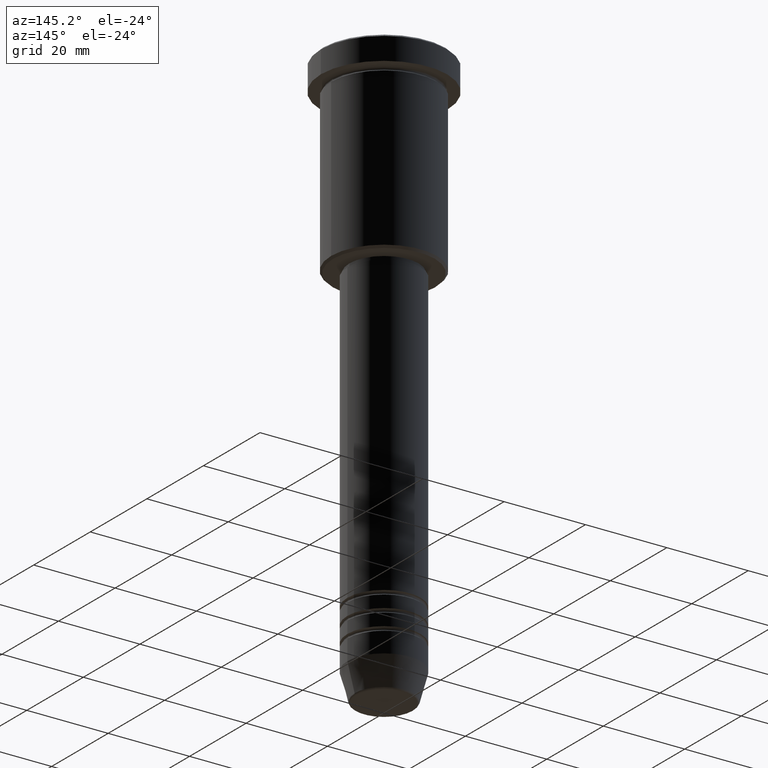
[diagram: clean part render]
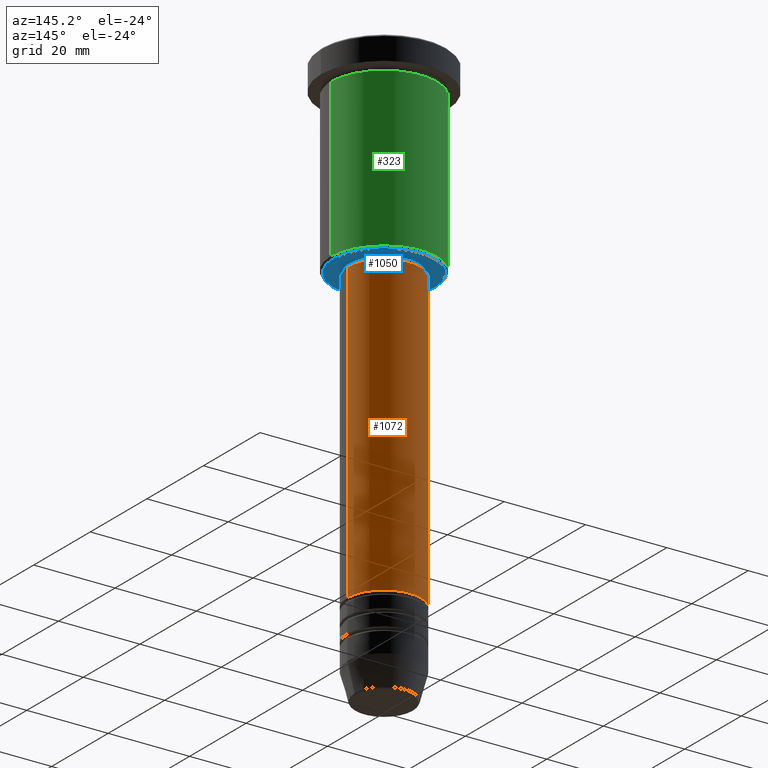
[diagram: same view with three faces highlighted in distinct colors, each labeled with its STEP entity id]
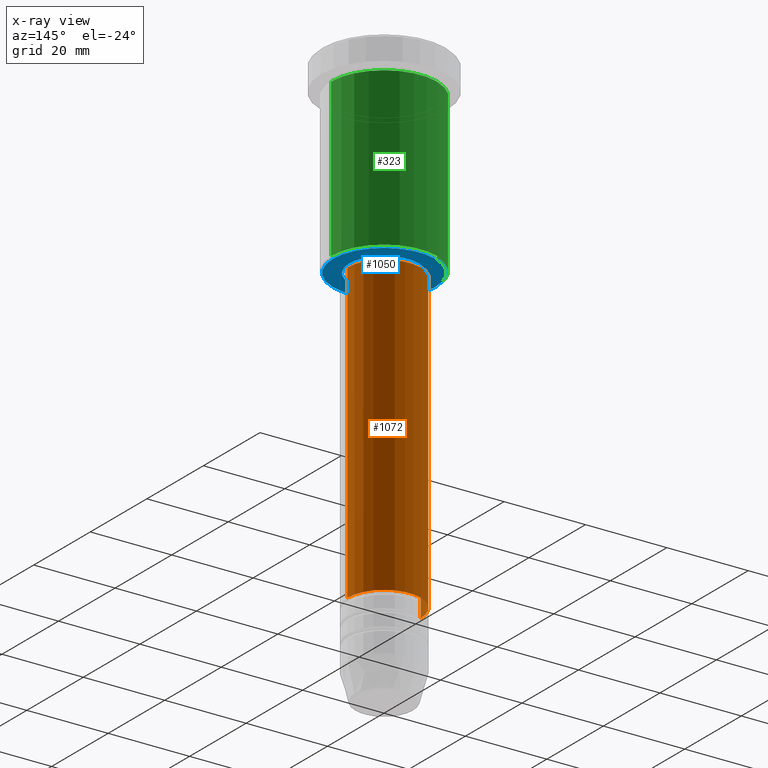
[diagram: x-ray of the same camera — body ghosted, the three highlighted faces saturated]
A machine part, auxiliary view with three faces highlighted in distinct colors.
The next image is the same camera in x-ray (body ghosted, the three faces saturated) — at least one of them is partly hidden behind the body in this view.
Their STEP definitions:

[orange] entity #1072 — the highlighted cylindrical surface (partial cylindrical patch) has radius 9 mm, axis along (-0, -0, 1).
#36 = AXIS2_PLACEMENT_3D ( 'NONE', #209, #934, #588 ) ;
#98 = EDGE_CURVE ( 'NONE', #1036, #603, #141, .T. ) ;
#113 = CARTESIAN_POINT ( 'NONE',  ( -8.999999999999998224, 1.102182119232617714E-15, -46.99999999999999289 ) ) ;
#124 = DIRECTION ( 'NONE',  ( -0.000000000000000000, -0.000000000000000000, 1.000000000000000000 ) ) ;
#130 = EDGE_CURVE ( 'NONE', #1065, #1036, #429, .T. ) ;
#141 = CIRCLE ( 'NONE', #975, 8.999999999999998224 ) ;
#173 = CARTESIAN_POINT ( 'NONE',  ( -9.000000000000000000, 1.102182119232617714E-15, 0.000000000000000000 ) ) ;
#188 = AXIS2_PLACEMENT_3D ( 'NONE', #333, #124, #877 ) ;
#209 = CARTESIAN_POINT ( 'NONE',  ( 0.000000000000000000, 0.000000000000000000, -119.9999999999999005 ) ) ;
#261 = VECTOR ( 'NONE', #546, 1000.000000000000000 ) ;
#311 = CYLINDRICAL_SURFACE ( 'NONE', #188, 9.000000000000000000 ) ;
#333 = CARTESIAN_POINT ( 'NONE',  ( 0.000000000000000000, 0.000000000000000000, 0.000000000000000000 ) ) ;
#350 = DIRECTION ( 'NONE',  ( -0.000000000000000000, -0.000000000000000000, 1.000000000000000000 ) ) ;
#422 = ORIENTED_EDGE ( 'NONE', *, *, #98, .F. ) ;
#429 = LINE ( 'NONE', #1167, #261 ) ;
#435 = DIRECTION ( 'NONE',  ( 1.000000000000000000, 0.000000000000000000, 0.000000000000000000 ) ) ;
#453 = DIRECTION ( 'NONE',  ( -0.000000000000000000, -0.000000000000000000, 1.000000000000000000 ) ) ;
#533 = CARTESIAN_POINT ( 'NONE',  ( 0.000000000000000000, 0.000000000000000000, -46.99999999999999289 ) ) ;
#546 = DIRECTION ( 'NONE',  ( -0.000000000000000000, -0.000000000000000000, 1.000000000000000000 ) ) ;
#588 = DIRECTION ( 'NONE',  ( 1.000000000000000000, 0.000000000000000000, 0.000000000000000000 ) ) ;
#603 = VERTEX_POINT ( 'NONE', #113 ) ;
#624 = EDGE_LOOP ( 'NONE', ( #626, #1052, #422, #679 ) ) ;
#626 = ORIENTED_EDGE ( 'NONE', *, *, #687, .T. ) ;
#632 = LINE ( 'NONE', #173, #1002 ) ;
#679 = ORIENTED_EDGE ( 'NONE', *, *, #130, .F. ) ;
#687 = EDGE_CURVE ( 'NONE', #1065, #791, #1074, .T. ) ;
#766 = CARTESIAN_POINT ( 'NONE',  ( 8.999999999999998224, 0.000000000000000000, -46.99999999999999289 ) ) ;
#791 = VERTEX_POINT ( 'NONE', #856 ) ;
#856 = CARTESIAN_POINT ( 'NONE',  ( -9.000000000000001776, 1.102182119232617911E-15, -119.9999999999999005 ) ) ;
#877 = DIRECTION ( 'NONE',  ( 1.000000000000000000, 0.000000000000000000, 0.000000000000000000 ) ) ;
#887 = CARTESIAN_POINT ( 'NONE',  ( 9.000000000000001776, 0.000000000000000000, -119.9999999999999005 ) ) ;
#934 = DIRECTION ( 'NONE',  ( -0.000000000000000000, -0.000000000000000000, 1.000000000000000000 ) ) ;
#975 = AXIS2_PLACEMENT_3D ( 'NONE', #533, #350, #435 ) ;
#986 = EDGE_CURVE ( 'NONE', #791, #603, #632, .T. ) ;
#1002 = VECTOR ( 'NONE', #453, 1000.000000000000000 ) ;
#1036 = VERTEX_POINT ( 'NONE', #766 ) ;
#1052 = ORIENTED_EDGE ( 'NONE', *, *, #986, .T. ) ;
#1065 = VERTEX_POINT ( 'NONE', #887 ) ;
#1072 = ADVANCED_FACE ( 'NONE', ( #1134 ), #311, .T. ) ;
#1074 = CIRCLE ( 'NONE', #36, 9.000000000000001776 ) ;
#1134 = FACE_OUTER_BOUND ( 'NONE', #624, .T. ) ;
#1167 = CARTESIAN_POINT ( 'NONE',  ( 9.000000000000000000, 0.000000000000000000, 0.000000000000000000 ) ) ;

[blue] entity #1050 — the highlighted planar face has unit normal (0, 0, -1).
#17 = CIRCLE ( 'NONE', #440, 8.500000000000000000 ) ;
#37 = EDGE_CURVE ( 'NONE', #1021, #170, #1012, .T. ) ;
#62 = EDGE_CURVE ( 'NONE', #170, #1021, #499, .T. ) ;
#63 = DIRECTION ( 'NONE',  ( -1.000000000000000000, 0.000000000000000000, 0.000000000000000000 ) ) ;
#75 = DIRECTION ( 'NONE',  ( -0.000000000000000000, -0.000000000000000000, 1.000000000000000000 ) ) ;
#91 = EDGE_LOOP ( 'NONE', ( #375, #1136 ) ) ;
#143 = PLANE ( 'NONE',  #1147 ) ;
#154 = DIRECTION ( 'NONE',  ( 0.000000000000000000, 0.000000000000000000, -1.000000000000000000 ) ) ;
#170 = VERTEX_POINT ( 'NONE', #472 ) ;
#184 = CIRCLE ( 'NONE', #667, 8.500000000000000000 ) ;
#222 = CARTESIAN_POINT ( 'NONE',  ( 0.000000000000000000, 13.00000000000000000, -46.00000000000000000 ) ) ;
#228 = FACE_OUTER_BOUND ( 'NONE', #91, .T. ) ;
#255 = VERTEX_POINT ( 'NONE', #936 ) ;
#277 = AXIS2_PLACEMENT_3D ( 'NONE', #629, #699, #63 ) ;
#309 = CARTESIAN_POINT ( 'NONE',  ( 0.000000000000000000, 0.000000000000000000, -46.00000000000000000 ) ) ;
#315 = VERTEX_POINT ( 'NONE', #616 ) ;
#325 = DIRECTION ( 'NONE',  ( -1.000000000000000000, 0.000000000000000000, -0.000000000000000000 ) ) ;
#375 = ORIENTED_EDGE ( 'NONE', *, *, #62, .T. ) ;
#390 = EDGE_CURVE ( 'NONE', #315, #255, #17, .T. ) ;
#403 = DIRECTION ( 'NONE',  ( 0.000000000000000000, 0.000000000000000000, -1.000000000000000000 ) ) ;
#440 = AXIS2_PLACEMENT_3D ( 'NONE', #550, #75, #914 ) ;
#472 = CARTESIAN_POINT ( 'NONE',  ( 12.49999999999999645, 0.000000000000000000, -46.00000000000000000 ) ) ;
#499 = CIRCLE ( 'NONE', #778, 12.49999999999999645 ) ;
#550 = CARTESIAN_POINT ( 'NONE',  ( 0.000000000000000000, 0.000000000000000000, -46.00000000000000000 ) ) ;
#555 = EDGE_LOOP ( 'NONE', ( #647, #829 ) ) ;
#602 = FACE_BOUND ( 'NONE', #555, .T. ) ;
#605 = CARTESIAN_POINT ( 'NONE',  ( 0.000000000000000000, 0.000000000000000000, -46.00000000000000000 ) ) ;
#616 = CARTESIAN_POINT ( 'NONE',  ( 8.500000000000000000, 0.000000000000000000, -46.00000000000000000 ) ) ;
#629 = CARTESIAN_POINT ( 'NONE',  ( 0.000000000000000000, 0.000000000000000000, -46.00000000000000000 ) ) ;
#647 = ORIENTED_EDGE ( 'NONE', *, *, #390, .T. ) ;
#667 = AXIS2_PLACEMENT_3D ( 'NONE', #309, #783, #680 ) ;
#680 = DIRECTION ( 'NONE',  ( 1.000000000000000000, 0.000000000000000000, 0.000000000000000000 ) ) ;
#699 = DIRECTION ( 'NONE',  ( 0.000000000000000000, 0.000000000000000000, -1.000000000000000000 ) ) ;
#767 = EDGE_CURVE ( 'NONE', #255, #315, #184, .T. ) ;
#778 = AXIS2_PLACEMENT_3D ( 'NONE', #605, #154, #1160 ) ;
#783 = DIRECTION ( 'NONE',  ( -0.000000000000000000, -0.000000000000000000, 1.000000000000000000 ) ) ;
#829 = ORIENTED_EDGE ( 'NONE', *, *, #767, .T. ) ;
#914 = DIRECTION ( 'NONE',  ( 1.000000000000000000, 0.000000000000000000, 0.000000000000000000 ) ) ;
#936 = CARTESIAN_POINT ( 'NONE',  ( -8.500000000000000000, 1.040949779275250140E-15, -46.00000000000000000 ) ) ;
#974 = CARTESIAN_POINT ( 'NONE',  ( -12.49999999999999645, 1.561424668912875308E-15, -46.00000000000000000 ) ) ;
#1012 = CIRCLE ( 'NONE', #277, 12.49999999999999645 ) ;
#1021 = VERTEX_POINT ( 'NONE', #974 ) ;
#1050 = ADVANCED_FACE ( 'NONE', ( #228, #602 ), #143, .T. ) ;
#1136 = ORIENTED_EDGE ( 'NONE', *, *, #37, .T. ) ;
#1147 = AXIS2_PLACEMENT_3D ( 'NONE', #222, #403, #325 ) ;
#1160 = DIRECTION ( 'NONE',  ( -1.000000000000000000, 0.000000000000000000, 0.000000000000000000 ) ) ;

[green] entity #323 — the highlighted cylindrical surface (partial cylindrical patch) has radius 13 mm, axis along (-0, -0, 1).
#3 = CARTESIAN_POINT ( 'NONE',  ( 13.00000000000000178, 0.000000000000000000, -45.49999999999999289 ) ) ;
#19 = AXIS2_PLACEMENT_3D ( 'NONE', #644, #812, #911 ) ;
#44 = EDGE_CURVE ( 'NONE', #405, #903, #163, .T. ) ;
#59 = ORIENTED_EDGE ( 'NONE', *, *, #1169, .F. ) ;
#115 = CARTESIAN_POINT ( 'NONE',  ( -13.00000000000000178, 1.592040838891559293E-15, 0.000000000000000000 ) ) ;
#147 = DIRECTION ( 'NONE',  ( -0.000000000000000000, -0.000000000000000000, 1.000000000000000000 ) ) ;
#159 = DIRECTION ( 'NONE',  ( 1.000000000000000000, 0.000000000000000000, 0.000000000000000000 ) ) ;
#163 = CIRCLE ( 'NONE', #564, 13.00000000000000178 ) ;
#165 = VECTOR ( 'NONE', #890, 1000.000000000000000 ) ;
#323 = ADVANCED_FACE ( 'NONE', ( #723 ), #1083, .T. ) ;
#343 = EDGE_CURVE ( 'NONE', #405, #477, #530, .T. ) ;
#382 = ORIENTED_EDGE ( 'NONE', *, *, #343, .F. ) ;
#391 = VERTEX_POINT ( 'NONE', #447 ) ;
#405 = VERTEX_POINT ( 'NONE', #3 ) ;
#427 = CARTESIAN_POINT ( 'NONE',  ( 13.00000000000000178, 0.000000000000000000, 0.000000000000000000 ) ) ;
#446 = EDGE_LOOP ( 'NONE', ( #950, #896, #59, #382 ) ) ;
#447 = CARTESIAN_POINT ( 'NONE',  ( -13.00000000000000178, 1.592040838891559293E-15, -6.999999999999995559 ) ) ;
#477 = VERTEX_POINT ( 'NONE', #489 ) ;
#489 = CARTESIAN_POINT ( 'NONE',  ( 13.00000000000000178, 0.000000000000000000, -6.999999999999995559 ) ) ;
#494 = DIRECTION ( 'NONE',  ( -0.000000000000000000, -0.000000000000000000, 1.000000000000000000 ) ) ;
#503 = VECTOR ( 'NONE', #494, 1000.000000000000000 ) ;
#520 = EDGE_CURVE ( 'NONE', #903, #391, #1030, .T. ) ;
#530 = LINE ( 'NONE', #427, #165 ) ;
#564 = AXIS2_PLACEMENT_3D ( 'NONE', #1084, #704, #1154 ) ;
#644 = CARTESIAN_POINT ( 'NONE',  ( 0.000000000000000000, 0.000000000000000000, -6.999999999999995559 ) ) ;
#704 = DIRECTION ( 'NONE',  ( -0.000000000000000000, -0.000000000000000000, 1.000000000000000000 ) ) ;
#723 = FACE_OUTER_BOUND ( 'NONE', #446, .T. ) ;
#812 = DIRECTION ( 'NONE',  ( -0.000000000000000000, -0.000000000000000000, 1.000000000000000000 ) ) ;
#890 = DIRECTION ( 'NONE',  ( -0.000000000000000000, -0.000000000000000000, 1.000000000000000000 ) ) ;
#896 = ORIENTED_EDGE ( 'NONE', *, *, #520, .T. ) ;
#903 = VERTEX_POINT ( 'NONE', #962 ) ;
#911 = DIRECTION ( 'NONE',  ( 1.000000000000000000, 0.000000000000000000, 0.000000000000000000 ) ) ;
#950 = ORIENTED_EDGE ( 'NONE', *, *, #44, .T. ) ;
#962 = CARTESIAN_POINT ( 'NONE',  ( -13.00000000000000178, 1.592040838891559293E-15, -45.49999999999999289 ) ) ;
#998 = CARTESIAN_POINT ( 'NONE',  ( 0.000000000000000000, 0.000000000000000000, 0.000000000000000000 ) ) ;
#1030 = LINE ( 'NONE', #115, #503 ) ;
#1034 = AXIS2_PLACEMENT_3D ( 'NONE', #998, #147, #159 ) ;
#1035 = CIRCLE ( 'NONE', #19, 13.00000000000000178 ) ;
#1083 = CYLINDRICAL_SURFACE ( 'NONE', #1034, 13.00000000000000178 ) ;
#1084 = CARTESIAN_POINT ( 'NONE',  ( 0.000000000000000000, 0.000000000000000000, -45.49999999999999289 ) ) ;
#1154 = DIRECTION ( 'NONE',  ( -1.000000000000000000, 0.000000000000000000, 0.000000000000000000 ) ) ;
#1169 = EDGE_CURVE ( 'NONE', #477, #391, #1035, .T. ) ;